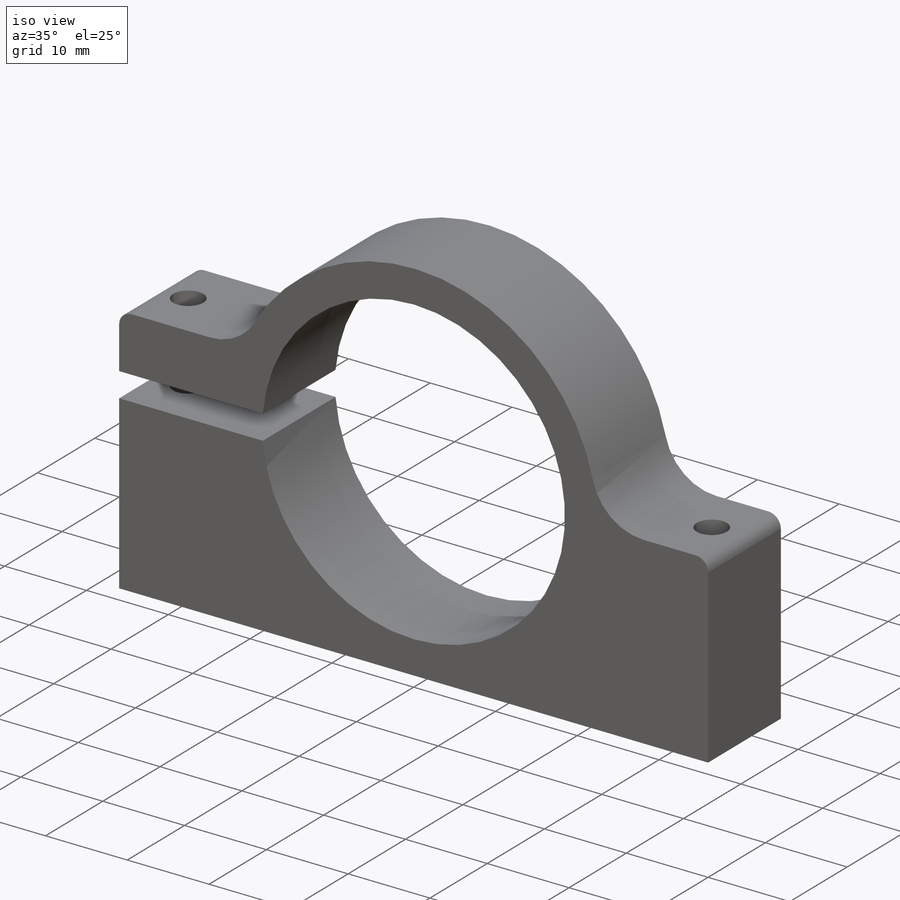
[diagram: iso view]
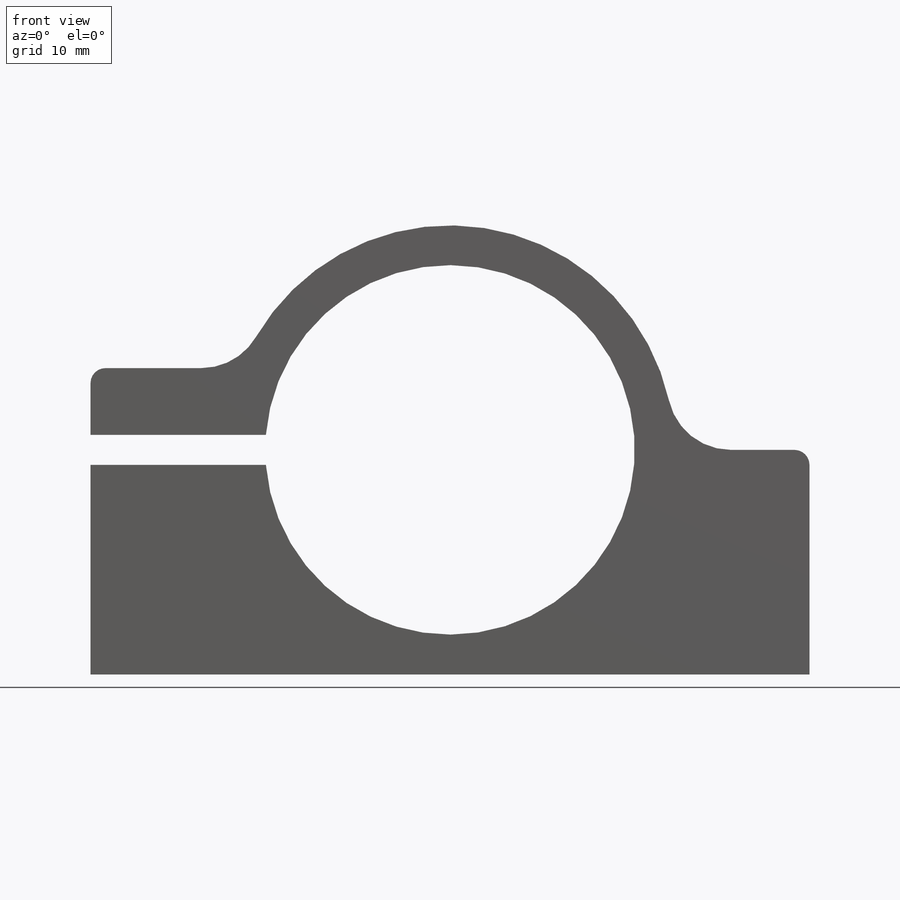
[diagram: front view]
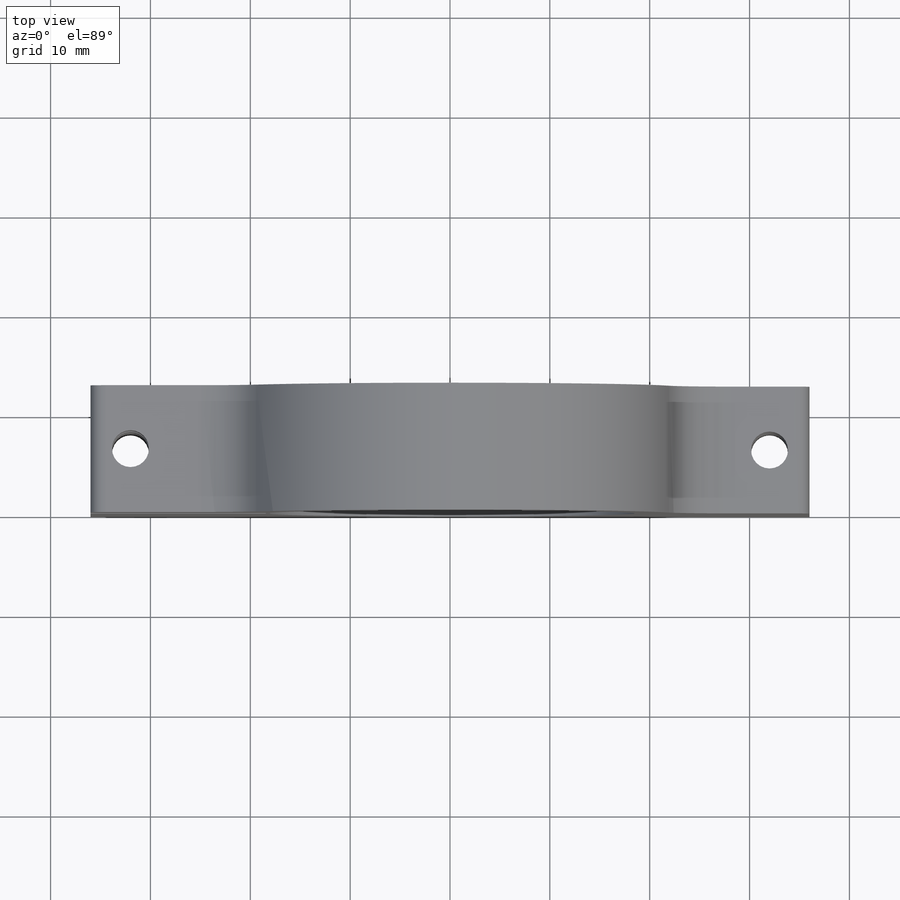
[diagram: top view]
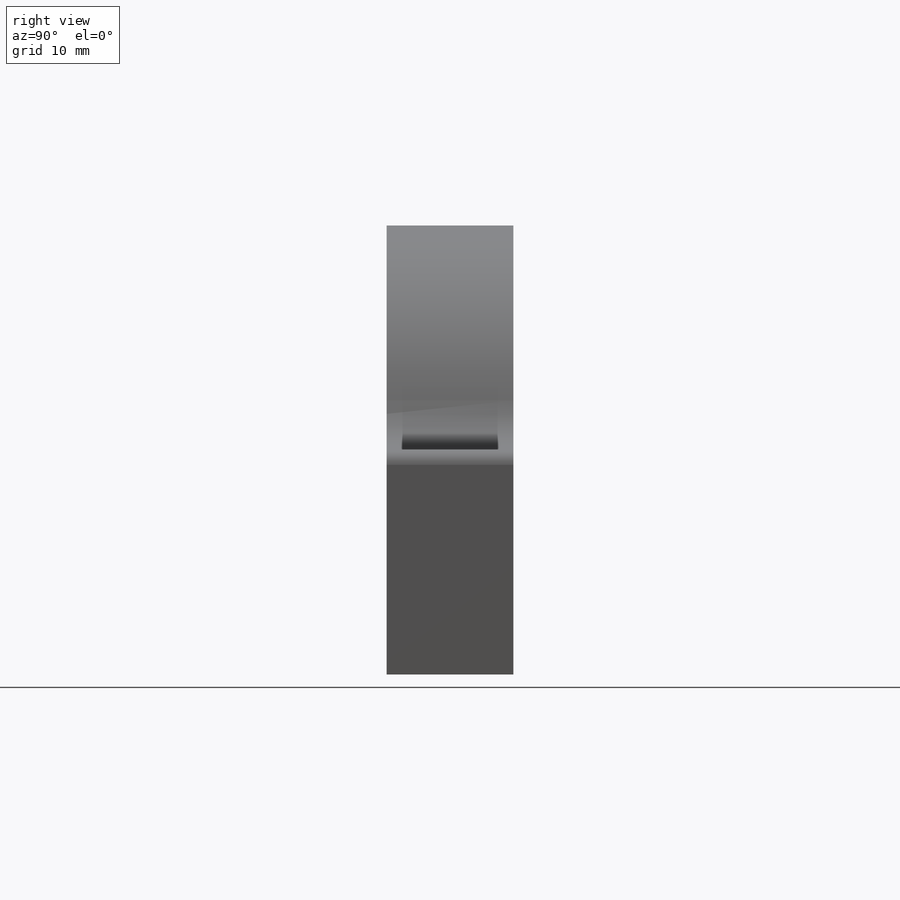
[diagram: right view]
SOLIDWORKS PART (.sldprt)
format: sldprt  version: not decoded by parser v0  size: 251,904 bytes
history: native  units: mm
features: sketch x5, cut_extrude x4, fillet x4, material x1, extrude x1 (+17 scaffold rows collapsed)
feature tree (32):
  scaffold x17  (default folders/planes/origin — collapsed)
  material  "6061 Alloy"
  sketch  "Sketch1"  dims[D1=44.96mm D2=36.0mm D3=36.0mm D4=21.0mm D5=1.5mm D6=36.0mm D7=1.5mm]
  extrude  "Extrude1"  Depth=12.7mm
  sketch  "Sketch2"  dims[D1=37.0mm]
  cut_extrude  "Cut-Extrude1"  [1 undecoded]
  sketch  "Sketch4"
  cut_extrude  "Cut-Extrude2"  [1 undecoded]
  sketch  "Sketch5"  dims[D3=3.7mm D1=32.0mm D2=6.35mm]
  cut_extrude  "Cut-Extrude3"  [1 undecoded]
  sketch  "Sketch6"  dims[D1=3.7mm D2=32.0mm D3=6.35mm]
  cut_extrude  "Cut-Extrude4"  [1 undecoded]
  fillet  "Fillet2"  Radius=6.35mm
  fillet  "Fillet3"  Radius=6.35mm
  fillet  "Fillet6"  Radius=1.5mm
  fillet  "Fillet7"  Radius=1.5mm
decode coverage: 9 of 14 modeling features carry decoded parameters
note: 4 parameter values undecoded
summary: no parameter record found for 4 features
note: suppression state not decoded; provenance and decode notes live in map.json
